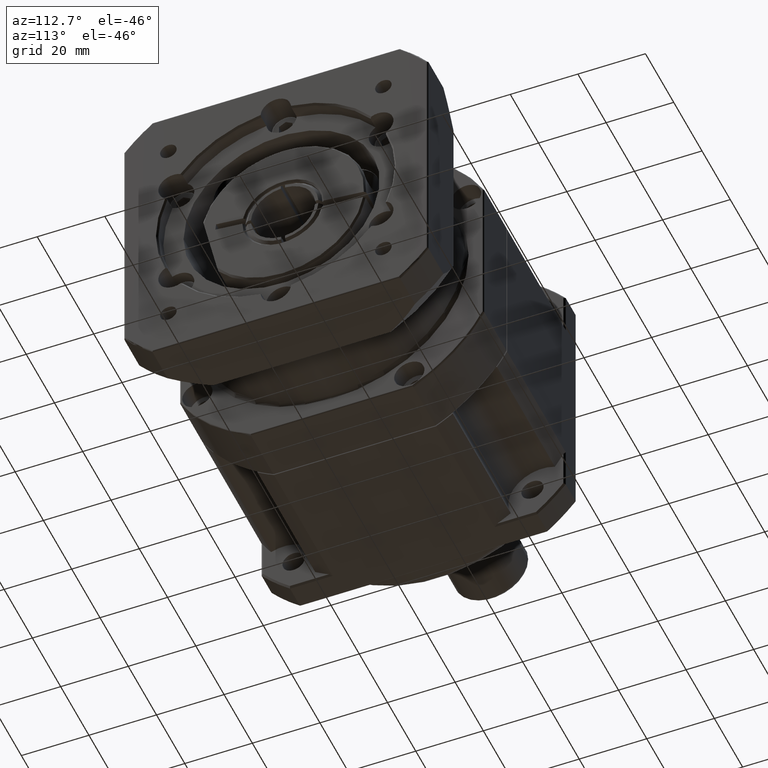
[diagram: clean part render]
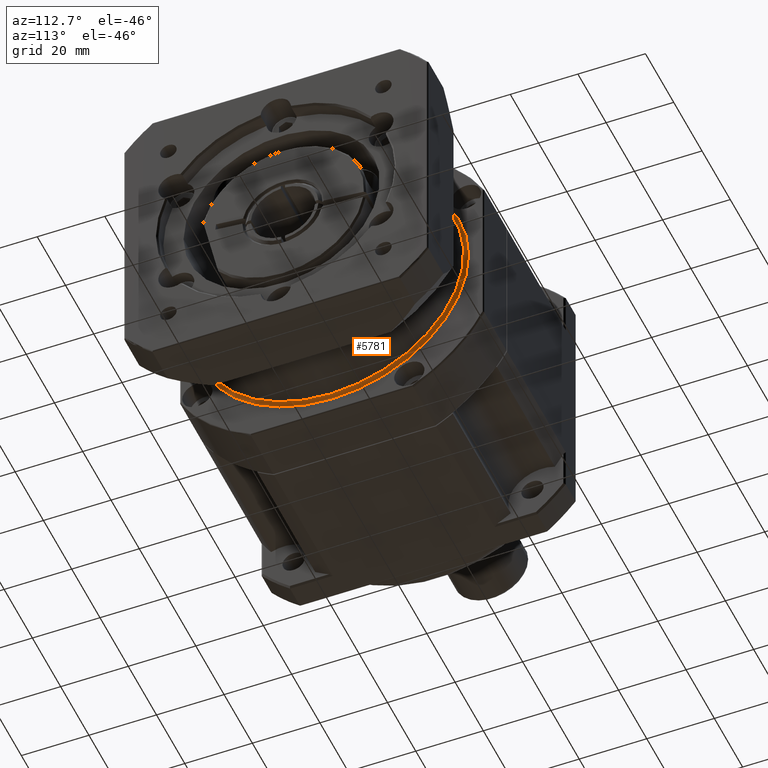
[diagram: same view with one face highlighted and labeled with its STEP entity id]
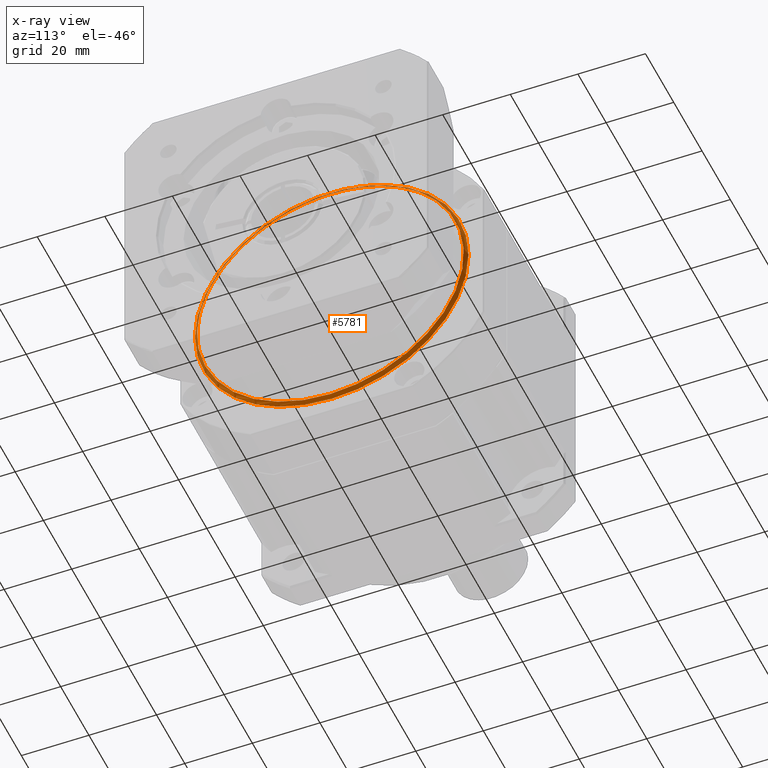
[diagram: x-ray of the same camera — body ghosted, the highlighted face saturated]
A machine part, auxiliary view. The second image highlights one B-rep face of the part: STEP entity #5781.
The next image is the same camera in x-ray: the body ghosted, the highlighted face saturated — about 24% of this face is hidden behind the body in this view.
In plain terms, the highlighted toroidal blend (fillet) surface has major radius 40.5 mm and minor (blend) radius 1 mm.
Its self-contained STEP definition (entity closure, byte-faithful):
#776=TOROIDAL_SURFACE('',#6332,40.5,1.);
#1052=FACE_BOUND('',#1774,.T.);
#1297=FACE_OUTER_BOUND('',#1773,.T.);
#1773=EDGE_LOOP('',(#4264));
#1774=EDGE_LOOP('',(#4265));
#2256=CIRCLE('',#6333,39.5);
#2257=CIRCLE('',#6334,40.5);
#2661=VERTEX_POINT('',#9510);
#2662=VERTEX_POINT('',#9512);
#3261=EDGE_CURVE('',#2661,#2661,#2256,.T.);
#3262=EDGE_CURVE('',#2662,#2662,#2257,.T.);
#4264=ORIENTED_EDGE('',*,*,#3261,.T.);
#4265=ORIENTED_EDGE('',*,*,#3262,.T.);
#5781=ADVANCED_FACE('',(#1297,#1052),#776,.F.);
#6332=AXIS2_PLACEMENT_3D('',#9509,#7444,#7445);
#6333=AXIS2_PLACEMENT_3D('',#9511,#7446,#7447);
#6334=AXIS2_PLACEMENT_3D('',#9513,#7448,#7449);
#7444=DIRECTION('center_axis',(-1.,-5.16244749963979E-16,3.75649258299208E-15));
#7445=DIRECTION('ref_axis',(3.74533068548246E-15,1.19850581935439E-15,1.));
#7446=DIRECTION('center_axis',(-1.,-5.16244749963979E-16,3.75649258299208E-15));
#7447=DIRECTION('ref_axis',(3.75649258299208E-15,1.26201132877111E-15,1.));
#7448=DIRECTION('center_axis',(1.,5.16244749963979E-16,-3.75649258299208E-15));
#7449=DIRECTION('ref_axis',(3.75649258299208E-15,1.26201132877111E-15,1.));
#9509=CARTESIAN_POINT('Origin',(6.47028965568176,-32.3933275789247,10.850387754831));
#9510=CARTESIAN_POINT('',(6.47028965568161,-32.3933275789247,-28.649612245169));
#9511=CARTESIAN_POINT('Origin',(6.47028965568176,-32.3933275789247,10.850387754831));
#9512=CARTESIAN_POINT('',(5.47028965568161,-32.3933275789247,-29.649612245169));
#9513=CARTESIAN_POINT('Origin',(5.47028965568176,-32.3933275789247,10.850387754831));